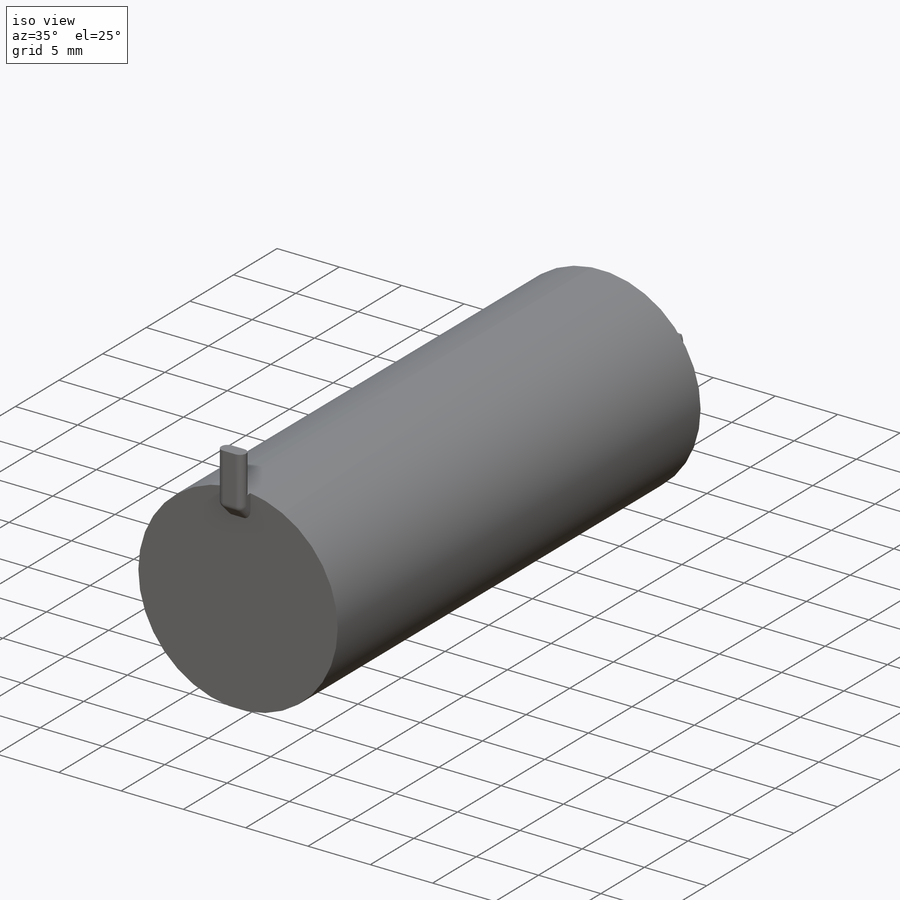
[diagram: iso view]
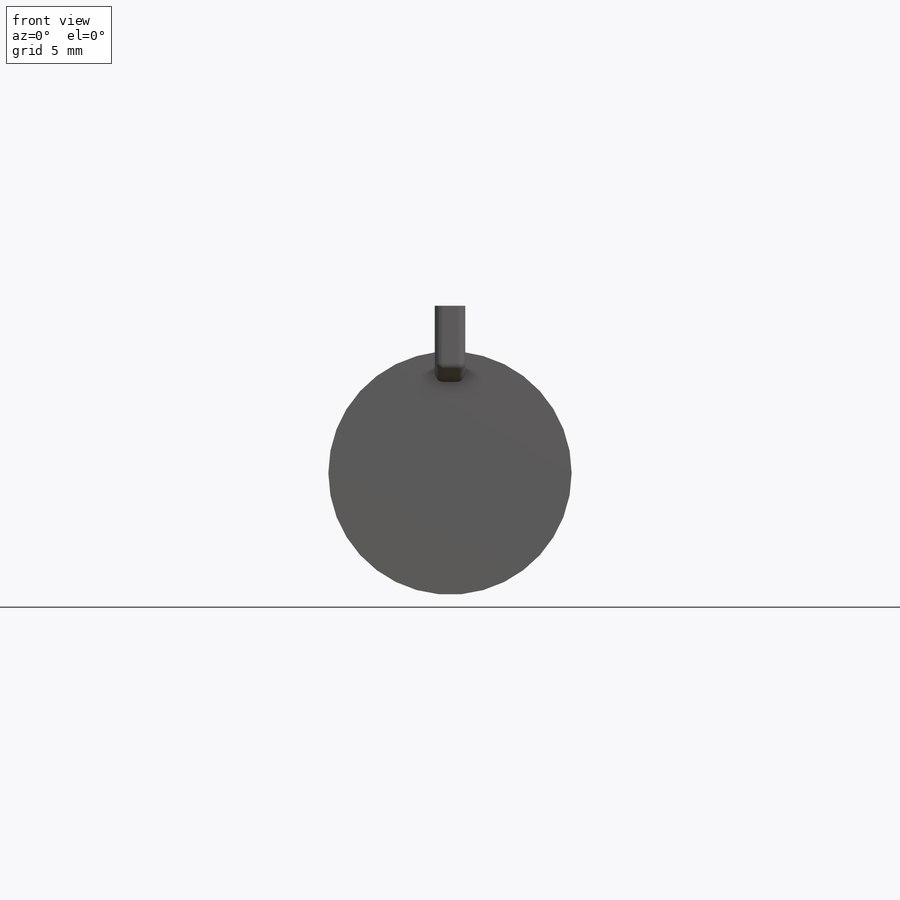
[diagram: front view]
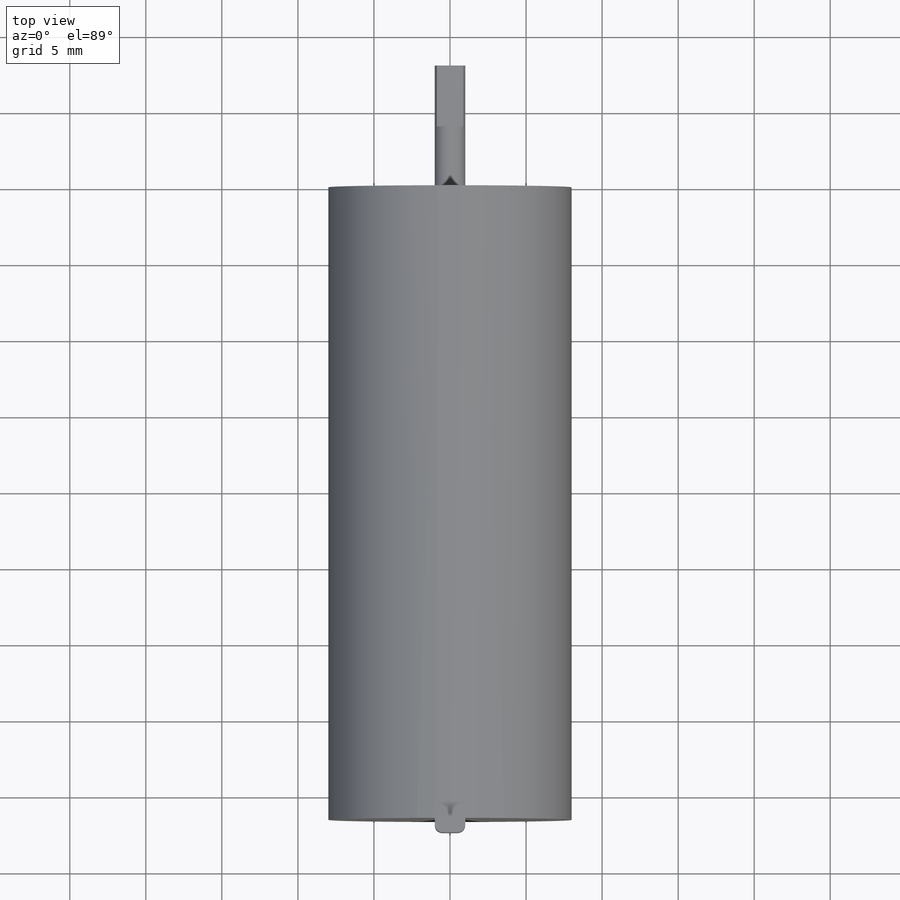
[diagram: top view]
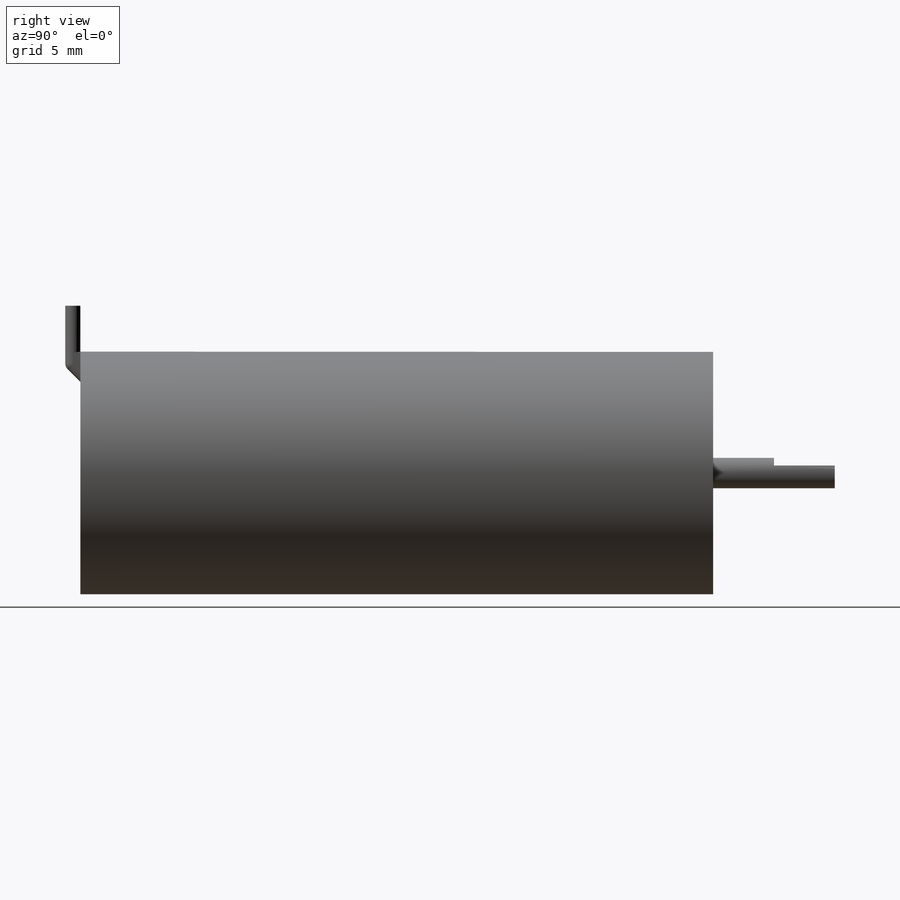
[diagram: right view]
SOLIDWORKS PART (.sldprt)
format: sldprt  version: not decoded by parser v0  size: 209,920 bytes
history: native  units: mm
features: sketch x4, plane x3, extrude x3, fillet x2, material x1, chamfer x1, cut_extrude x1 (+10 scaffold rows collapsed)
feature tree (25):
  scaffold x10  (default folders/planes/origin — collapsed)
  material  "AISI 316 Annealed Stainless Steel Bar (SS)"
  plane  "Ön Düzlem"
  plane  "Üst Düzlem"
  plane  "Sağ Düzlem"
  sketch  "Sketch1"  dims[D1=~23.175606mm]
  extrude  "Boss-Extrude1"  Depth=41.6mm
  sketch  "Sketch2"  dims[c1.D1=2.0mm c1.D2=~0.929287mm c1.D3=2.0mm c1.D4=~0.929287mm c2.D1=2.0mm c2.D2=1.0mm c2.D3=6.0mm c2.D4=5.0mm]
  extrude  "Boss-Extrude2"  Depth=1mm
  chamfer  "Chamfer1"  Distance=1mm Angle=45deg
  fillet  "Fillet1"  Radius=0.5mm
  fillet  "Fillet2"  Radius=0.5mm
  sketch  "Sketch3"  dims[D1=~0.847889mm]
  extrude  "Boss-Extrude3"  Depth=8mm
  sketch  "Sketch4"  dims[D1=0.5mm]
  cut_extrude  "Cut-Extrude1"  Depth=4mm
decode coverage: 11 of 11 modeling features carry decoded parameters
note: ~ marks probable driven/reference dimensions
note: suppression state not decoded; provenance and decode notes live in map.json
